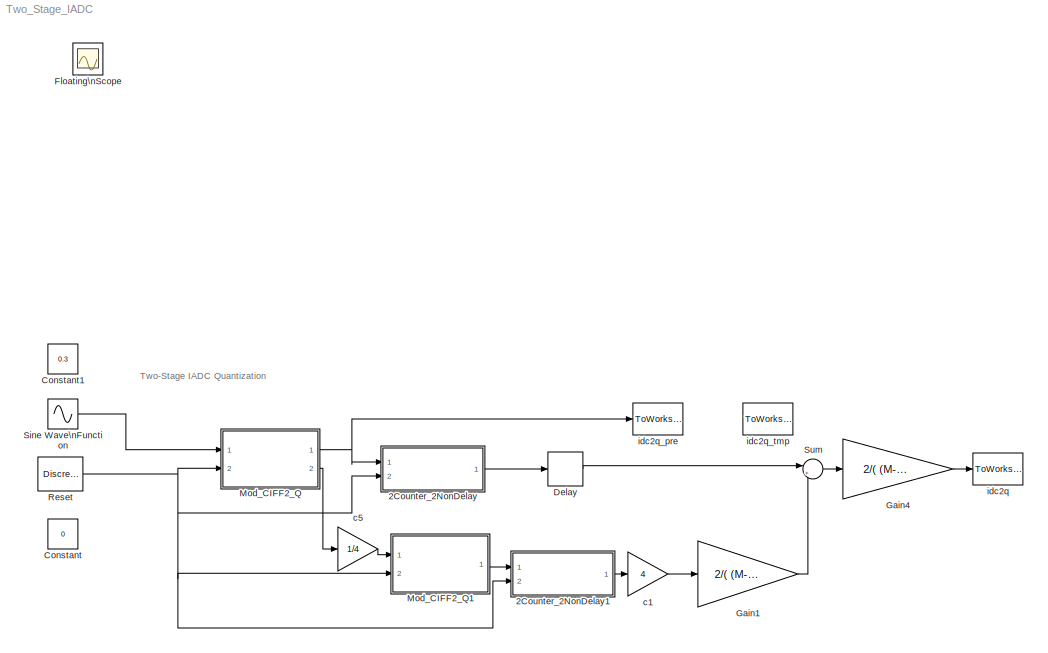
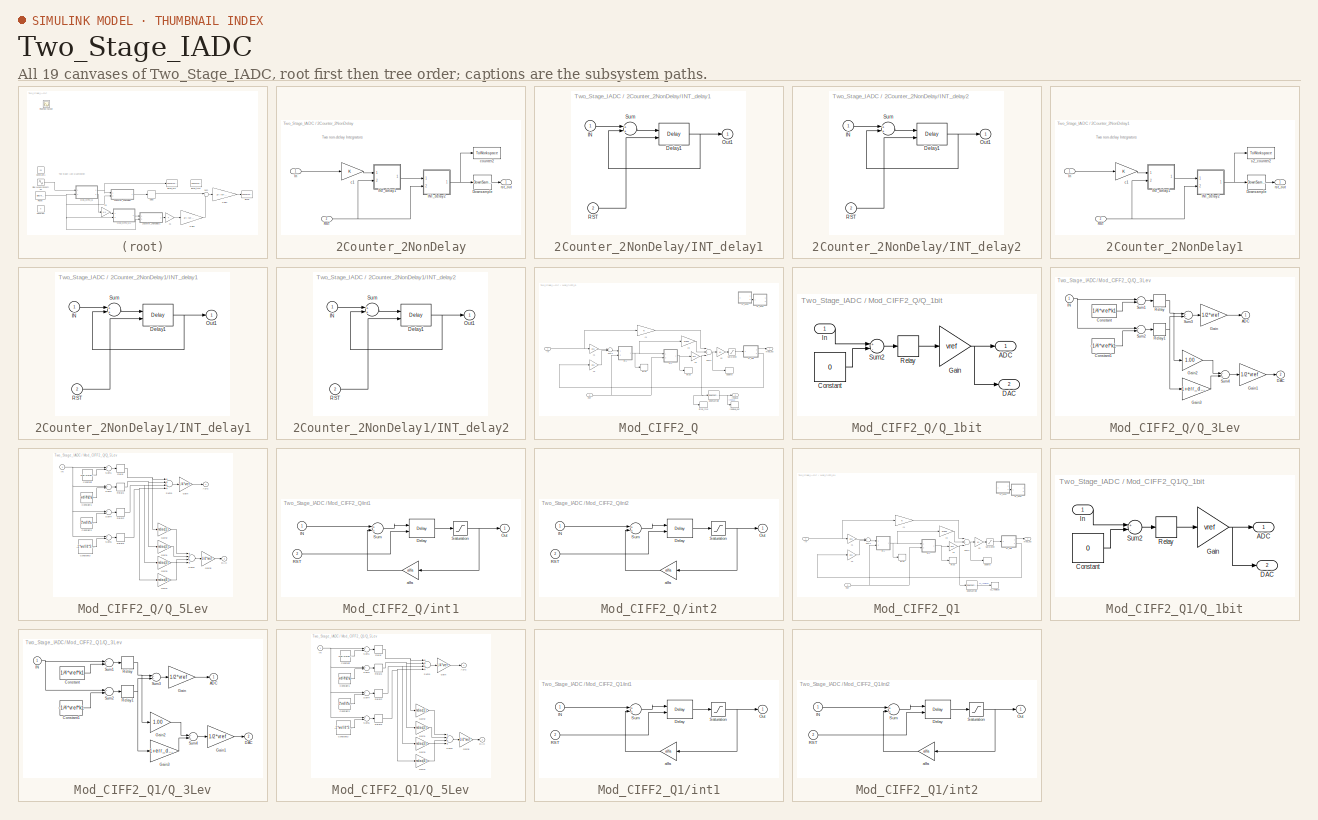
[diagram: thumbnail index - all 19 canvases of the model, root first then tree order]
MODEL Two_Stage_IADC
KIND model
BLOCK [SubSystem] 2Counter_2NonDelay
  Ports = [2, 1]
  RequestExecContextInheritance = off
  SID = 12296
BLOCK [DownSample] 2Counter_2NonDelay/Downsample
  InputProcessing = Elements as channels (sample based)
  N = OSR
  RateOptions = Allow multirate processing
  SID = 12299
  phase = OSR-1
BLOCK [SubSystem] 2Counter_2NonDelay/INT_delay1
  Ports = [2, 1]
  RequestExecContextInheritance = off
  SID = 12872
BLOCK [Delay] 2Counter_2NonDelay/INT_delay1/Delay1
  DelayLength = 1
  ExternalReset = Rising
  InitialCondition = 0
  InputPortMap = u0,r5
  Ports = [2, 1]
  SID = 12875
  UserData = DataTag0
  UserDataPersistent = on
BLOCK [Inport] 2Counter_2NonDelay/INT_delay1/IN
  IconDisplay = Port number
  SID = 12873
BLOCK [Outport] 2Counter_2NonDelay/INT_delay1/Out1
  IconDisplay = Port number
  SID = 12877
  VectorParamsAs1DForOutWhenUnconnected = off
BLOCK [Inport] 2Counter_2NonDelay/INT_delay1/RST
  IconDisplay = Port number
  Port = 2
  SID = 12874
BLOCK [Sum] 2Counter_2NonDelay/INT_delay1/Sum
  Ports = [2, 1]
  SID = 12876
BLOCK [SubSystem] 2Counter_2NonDelay/INT_delay2
  Ports = [2, 1]
  RequestExecContextInheritance = off
  SID = 12306
BLOCK [Delay] 2Counter_2NonDelay/INT_delay2/Delay1
  DelayLength = 1
  ExternalReset = Rising
  InitialCondition = 0
  InputPortMap = u0,r5
  Ports = [2, 1]
  SID = 12712
  UserData = DataTag1
  UserDataPersistent = on
BLOCK [Inport] 2Counter_2NonDelay/INT_delay2/IN
  IconDisplay = Port number
  SID = 12307
BLOCK [Outport] 2Counter_2NonDelay/INT_delay2/Out1
  IconDisplay = Port number
  SID = 12311
  VectorParamsAs1DForOutWhenUnconnected = off
BLOCK [Inport] 2Counter_2NonDelay/INT_delay2/RST
  IconDisplay = Port number
  Port = 2
  SID = 12308
BLOCK [Sum] 2Counter_2NonDelay/INT_delay2/Sum
  Ports = [2, 1]
  SID = 12310
BLOCK [Inport] 2Counter_2NonDelay/In
  IconDisplay = Port number
  SID = 12297
BLOCK [Inport] 2Counter_2NonDelay/RST
  IconDisplay = Port number
  Port = 2
  SID = 12298
BLOCK [Gain] 2Counter_2NonDelay/c1
  SID = 12312
BLOCK [ToWorkspace] 2Counter_2NonDelay/counter2
  MaxDataPoints = inf
  Ports = [1]
  SID = 12616
  SampleTime = -1
  VariableName = counter2
BLOCK [Outport] 2Counter_2NonDelay/rst_out
  IconDisplay = Port number
  SID = 12313
  VectorParamsAs1DForOutWhenUnconnected = off
BLOCK [SubSystem] 2Counter_2NonDelay1
  Ports = [2, 1]
  RequestExecContextInheritance = off
  SID = 12878
BLOCK [DownSample] 2Counter_2NonDelay1/Downsample
  InputProcessing = Elements as channels (sample based)
  N = OSR
  RateOptions = Allow multirate processing
  SID = 12881
  phase = OSR-1
BLOCK [SubSystem] 2Counter_2NonDelay1/INT_delay1
  Ports = [2, 1]
  RequestExecContextInheritance = off
  SID = 12882
BLOCK [Delay] 2Counter_2NonDelay1/INT_delay1/Delay1
  DelayLength = 1
  ExternalReset = Rising
  InitialCondition = 0
  InputPortMap = u0,r5
  Ports = [2, 1]
  SID = 12885
  UserData = DataTag2
  UserDataPersistent = on
BLOCK [Inport] 2Counter_2NonDelay1/INT_delay1/IN
  IconDisplay = Port number
  SID = 12883
BLOCK [Outport] 2Counter_2NonDelay1/INT_delay1/Out1
  IconDisplay = Port number
  SID = 12887
  VectorParamsAs1DForOutWhenUnconnected = off
BLOCK [Inport] 2Counter_2NonDelay1/INT_delay1/RST
  IconDisplay = Port number
  Port = 2
  SID = 12884
BLOCK [Sum] 2Counter_2NonDelay1/INT_delay1/Sum
  Ports = [2, 1]
  SID = 12886
BLOCK [SubSystem] 2Counter_2NonDelay1/INT_delay2
  Ports = [2, 1]
  RequestExecContextInheritance = off
  SID = 12888
BLOCK [Delay] 2Counter_2NonDelay1/INT_delay2/Delay1
  DelayLength = 1
  ExternalReset = Rising
  InitialCondition = 0
  InputPortMap = u0,r5
  Ports = [2, 1]
  SID = 12891
  UserData = DataTag3
  UserDataPersistent = on
BLOCK [Inport] 2Counter_2NonDelay1/INT_delay2/IN
  IconDisplay = Port number
  SID = 12889
BLOCK [Outport] 2Counter_2NonDelay1/INT_delay2/Out1
  IconDisplay = Port number
  SID = 12893
  VectorParamsAs1DForOutWhenUnconnected = off
BLOCK [Inport] 2Counter_2NonDelay1/INT_delay2/RST
  IconDisplay = Port number
  Port = 2
  SID = 12890
BLOCK [Sum] 2Counter_2NonDelay1/INT_delay2/Sum
  Ports = [2, 1]
  SID = 12892
BLOCK [Inport] 2Counter_2NonDelay1/In
  IconDisplay = Port number
  SID = 12879
BLOCK [Inport] 2Counter_2NonDelay1/RST
  IconDisplay = Port number
  Port = 2
  SID = 12880
BLOCK [Gain] 2Counter_2NonDelay1/c1
  SID = 12894
BLOCK [Outport] 2Counter_2NonDelay1/rst_out
  IconDisplay = Port number
  SID = 12896
  VectorParamsAs1DForOutWhenUnconnected = off
BLOCK [ToWorkspace] 2Counter_2NonDelay1/s2_counter2
  MaxDataPoints = inf
  Ports = [1]
  SID = 12895
  SampleTime = -1
  VariableName = s2_counter2
BLOCK [Constant] Constant
  Commented = on
  SID = 12759
  Value = 0
BLOCK [Constant] Constant1
  Commented = on
  SID = 12900
  Value = 0.3
BLOCK [Delay] Delay
  DelayLength = 1
  InitialCondition = 0
  InputPortMap = u0
  Ports = [1, 1]
  SID = 12868
BLOCK [Scope] Floating\nScope
  Floating = off
  IOType = viewer
  NumInputPorts = 1
  Ports = []
  SID = 82
  ScopeSpecificationString = C++SS(StrPVP('Location','[376, 294, 963, 755]'),StrPVP('Open','off'),MxPVP('AxesTitles',54,'struct(''axes1'',''%<SignalLabel>'')'),StrPVP('DataFormat','StructureWithTime'),StrPVP('BlockParamSampleTime','0'),StrPVP('LimitDataPoints','on'),StrPVP('Decimation','1'),StrPVP('BlockParamSampleInput','off'))
BLOCK [Gain] Gain1
  Gain = 2/( (M-1)*(M) )
  OutDataTypeStr = Inherit: Inherit via internal rule
  ParamDataTypeStr = Inherit: Inherit via internal rule
  SID = 12899
  SaturateOnIntegerOverflow = off
BLOCK [Gain] Gain4
  Gain = 2/( (M-1)*(M) )
  OutDataTypeStr = Inherit: Inherit via internal rule
  ParamDataTypeStr = Inherit: Inherit via internal rule
  SID = 11902
  SaturateOnIntegerOverflow = off
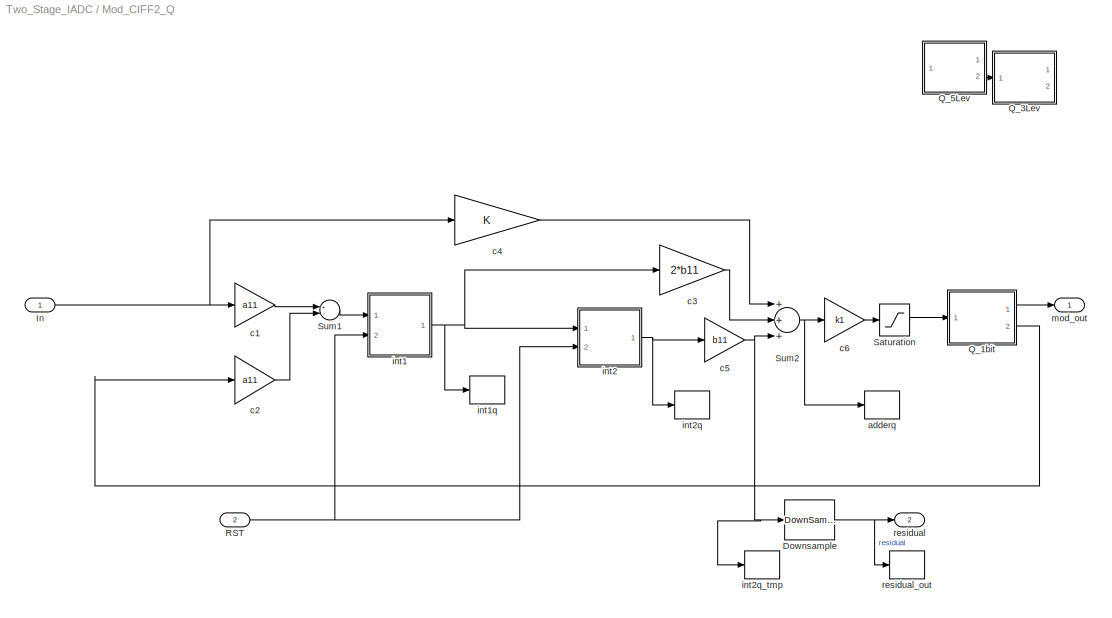
BLOCK [SubSystem] Mod_CIFF2_Q
  Ports = [2, 2]
  RequestExecContextInheritance = off
  SID = 11903
BLOCK [DownSample] Mod_CIFF2_Q/Downsample
  InputProcessing = Elements as channels (sample based)
  N = OSR
  RateOptions = Allow multirate processing
  SID = 12760
  phase = OSR-1
BLOCK [Inport] Mod_CIFF2_Q/In
  IconDisplay = Port number
  SID = 11904
BLOCK [SubSystem] Mod_CIFF2_Q/Q_1bit
  Ports = [1, 2]
  RequestExecContextInheritance = off
  SID = 11919
BLOCK [Outport] Mod_CIFF2_Q/Q_1bit/ADC
  IconDisplay = Port number
  SID = 11925
  VectorParamsAs1DForOutWhenUnconnected = off
BLOCK [Constant] Mod_CIFF2_Q/Q_1bit/Constant
  SID = 11921
  Value = 0
BLOCK [Outport] Mod_CIFF2_Q/Q_1bit/DAC
  IconDisplay = Port number
  Port = 2
  SID = 11926
  VectorParamsAs1DForOutWhenUnconnected = off
BLOCK [Gain] Mod_CIFF2_Q/Q_1bit/Gain
  Gain = vref
  OutDataTypeStr = Inherit: Inherit via internal rule
  ParamDataTypeStr = Inherit: Inherit via internal rule
  SID = 11922
  SaturateOnIntegerOverflow = off
BLOCK [Inport] Mod_CIFF2_Q/Q_1bit/In
  IconDisplay = Port number
  SID = 11920
BLOCK [Relay] Mod_CIFF2_Q/Q_1bit/Relay
  OffOutputValue = -1
  SID = 11923
  SampleTime = tclk
BLOCK [Sum] Mod_CIFF2_Q/Q_1bit/Sum2
  Inputs = +-
  Ports = [2, 1]
  SID = 11924
BLOCK [SubSystem] Mod_CIFF2_Q/Q_3Lev
  Ports = [1, 2]
  RequestExecContextInheritance = off
  SID = 12583
BLOCK [Outport] Mod_CIFF2_Q/Q_3Lev/ADC
  IconDisplay = Port number
  SID = 12597
  VectorParamsAs1DForOutWhenUnconnected = off
BLOCK [Constant] Mod_CIFF2_Q/Q_3Lev/Constant
  SID = 12585
  Value = 1/4*vref*k1
BLOCK [Constant] Mod_CIFF2_Q/Q_3Lev/Constant1
  SID = 12586
  Value = -1/4*vref*k1
BLOCK [Outport] Mod_CIFF2_Q/Q_3Lev/DAC
  IconDisplay = Port number
  Port = 2
  SID = 12598
  VectorParamsAs1DForOutWhenUnconnected = off
BLOCK [Gain] Mod_CIFF2_Q/Q_3Lev/Gain
  Gain = 1/2*vref
  OutDataTypeStr = Inherit: Inherit via internal rule
  ParamDataTypeStr = Inherit: Inherit via internal rule
  SID = 12587
  SaturateOnIntegerOverflow = off
BLOCK [Gain] Mod_CIFF2_Q/Q_3Lev/Gain1
  Gain = 1/2*vref
  OutDataTypeStr = Inherit: Inherit via internal rule
  ParamDataTypeStr = Inherit: Inherit via internal rule
  SID = 12588
  SaturateOnIntegerOverflow = off
BLOCK [Gain] Mod_CIFF2_Q/Q_3Lev/Gain2
  Gain = 1.00
  OutDataTypeStr = Inherit: Inherit via internal rule
  ParamDataTypeStr = Inherit: Inherit via internal rule
  SID = 12589
  SaturateOnIntegerOverflow = off
BLOCK [Gain] Mod_CIFF2_Q/Q_3Lev/Gain3
  Gain = 1+err_dac
  OutDataTypeStr = Inherit: Inherit via internal rule
  ParamDataTypeStr = Inherit: Inherit via internal rule
  SID = 12590
  SaturateOnIntegerOverflow = off
BLOCK [Inport] Mod_CIFF2_Q/Q_3Lev/IN
  IconDisplay = Port number
  SID = 12584
BLOCK [Relay] Mod_CIFF2_Q/Q_3Lev/Relay
  OffOutputValue = -1
  SID = 12591
  SampleTime = tclk
BLOCK [Relay] Mod_CIFF2_Q/Q_3Lev/Relay1
  OffOutputValue = -1
  SID = 12592
  SampleTime = tclk
BLOCK [Sum] Mod_CIFF2_Q/Q_3Lev/Sum1
  Inputs = +-
  Ports = [2, 1]
  SID = 12593
BLOCK [Sum] Mod_CIFF2_Q/Q_3Lev/Sum2
  Inputs = +-
  Ports = [2, 1]
  SID = 12594
BLOCK [Sum] Mod_CIFF2_Q/Q_3Lev/Sum3
  Ports = [2, 1]
  SID = 12595
BLOCK [Sum] Mod_CIFF2_Q/Q_3Lev/Sum4
  Ports = [2, 1]
  SID = 12596
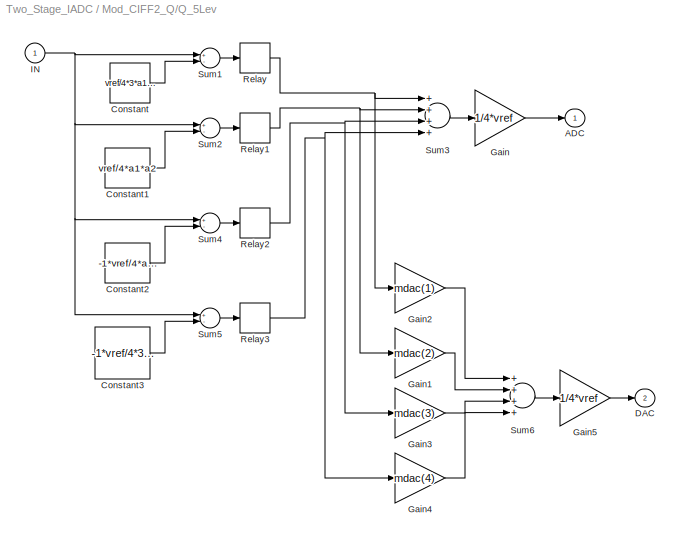
BLOCK [SubSystem] Mod_CIFF2_Q/Q_5Lev
  Ports = [1, 2]
  RequestExecContextInheritance = off
  SID = 12559
BLOCK [Outport] Mod_CIFF2_Q/Q_5Lev/ADC
  IconDisplay = Port number
  SID = 12581
  VectorParamsAs1DForOutWhenUnconnected = off
BLOCK [Constant] Mod_CIFF2_Q/Q_5Lev/Constant
  SID = 12561
  Value = vref/4*3*a1*a2
BLOCK [Constant] Mod_CIFF2_Q/Q_5Lev/Constant1
  SID = 12562
  Value = vref/4*a1*a2
BLOCK [Constant] Mod_CIFF2_Q/Q_5Lev/Constant2
  SID = 12563
  Value = -1*vref/4*a1*a2
BLOCK [Constant] Mod_CIFF2_Q/Q_5Lev/Constant3
  SID = 12564
  Value = -1*vref/4*3*a1*a2
BLOCK [Outport] Mod_CIFF2_Q/Q_5Lev/DAC
  IconDisplay = Port number
  Port = 2
  SID = 12582
  VectorParamsAs1DForOutWhenUnconnected = off
BLOCK [Gain] Mod_CIFF2_Q/Q_5Lev/Gain
  Gain = 1/4*vref
  OutDataTypeStr = Inherit: Inherit via internal rule
  ParamDataTypeStr = Inherit: Inherit via internal rule
  SID = 12565
  SaturateOnIntegerOverflow = off
BLOCK [Gain] Mod_CIFF2_Q/Q_5Lev/Gain1
  Gain = mdac(2)
  OutDataTypeStr = Inherit: Inherit via internal rule
  ParamDataTypeStr = Inherit: Inherit via internal rule
  SID = 12566
  SaturateOnIntegerOverflow = off
BLOCK [Gain] Mod_CIFF2_Q/Q_5Lev/Gain2
  Gain = mdac(1)
  OutDataTypeStr = Inherit: Inherit via internal rule
  ParamDataTypeStr = Inherit: Inherit via internal rule
  SID = 12567
  SaturateOnIntegerOverflow = off
BLOCK [Gain] Mod_CIFF2_Q/Q_5Lev/Gain3
  Gain = mdac(3)
  OutDataTypeStr = Inherit: Inherit via internal rule
  ParamDataTypeStr = Inherit: Inherit via internal rule
  SID = 12568
  SaturateOnIntegerOverflow = off
BLOCK [Gain] Mod_CIFF2_Q/Q_5Lev/Gain4
  Gain = mdac(4)
  OutDataTypeStr = Inherit: Inherit via internal rule
  ParamDataTypeStr = Inherit: Inherit via internal rule
  SID = 12569
  SaturateOnIntegerOverflow = off
BLOCK [Gain] Mod_CIFF2_Q/Q_5Lev/Gain5
  Gain = 1/4*vref
  OutDataTypeStr = Inherit: Inherit via internal rule
  ParamDataTypeStr = Inherit: Inherit via internal rule
  SID = 12570
  SaturateOnIntegerOverflow = off
BLOCK [Inport] Mod_CIFF2_Q/Q_5Lev/IN
  IconDisplay = Port number
  SID = 12560
BLOCK [Relay] Mod_CIFF2_Q/Q_5Lev/Relay
  OffOutputValue = -1
  SID = 12571
  SampleTime = tclk
BLOCK [Relay] Mod_CIFF2_Q/Q_5Lev/Relay1
  OffOutputValue = -1
  SID = 12572
  SampleTime = tclk
BLOCK [Relay] Mod_CIFF2_Q/Q_5Lev/Relay2
  OffOutputValue = -1
  SID = 12573
  SampleTime = tclk
BLOCK [Relay] Mod_CIFF2_Q/Q_5Lev/Relay3
  OffOutputValue = -1
  SID = 12574
  SampleTime = tclk
BLOCK [Sum] Mod_CIFF2_Q/Q_5Lev/Sum1
  Inputs = +-
  Ports = [2, 1]
  SID = 12575
BLOCK [Sum] Mod_CIFF2_Q/Q_5Lev/Sum2
  Inputs = +-
  Ports = [2, 1]
  SID = 12576
BLOCK [Sum] Mod_CIFF2_Q/Q_5Lev/Sum3
  Inputs = ++++
  Ports = [4, 1]
  SID = 12577
BLOCK [Sum] Mod_CIFF2_Q/Q_5Lev/Sum4
  Inputs = +-
  Ports = [2, 1]
  SID = 12578
BLOCK [Sum] Mod_CIFF2_Q/Q_5Lev/Sum5
  Inputs = +-
  Ports = [2, 1]
  SID = 12579
BLOCK [Sum] Mod_CIFF2_Q/Q_5Lev/Sum6
  Inputs = ++++
  Ports = [4, 1]
  SID = 12580
BLOCK [Inport] Mod_CIFF2_Q/RST
  IconDisplay = Port number
  Port = 2
  SID = 11905
BLOCK [Saturate] Mod_CIFF2_Q/Saturation
  InputPortMap = u0
  LowerLimit = -1*adder_max
  Ports = [1, 1]
  SID = 11967
  UpperLimit = adder_max*1
BLOCK [Sum] Mod_CIFF2_Q/Sum1
  Inputs = +-
  Ports = [2, 1]
  SID = 11968
BLOCK [Sum] Mod_CIFF2_Q/Sum2
  Inputs = +++
  Ports = [3, 1]
  SID = 11969
BLOCK [ToWorkspace] Mod_CIFF2_Q/adderq
  MaxDataPoints = inf
  Ports = [1]
  SID = 12749
  SampleTime = -1
  VariableName = adderq
BLOCK [Gain] Mod_CIFF2_Q/c1
  Gain = a11
  SID = 11970
BLOCK [Gain] Mod_CIFF2_Q/c2
  Gain = a11
  SID = 11971
BLOCK [Gain] Mod_CIFF2_Q/c3
  Gain = 2*b11
  SID = 11972
BLOCK [Gain] Mod_CIFF2_Q/c4
  SID = 11973
BLOCK [Gain] Mod_CIFF2_Q/c5
  Gain = b11
  SID = 11974
BLOCK [Gain] Mod_CIFF2_Q/c6
  Gain = k1
  SID = 11975
BLOCK [SubSystem] Mod_CIFF2_Q/int1
  Ports = [2, 1]
  RequestExecContextInheritance = off
  SID = 12646
BLOCK [Delay] Mod_CIFF2_Q/int1/Delay
  DelayLength = 1
  ExternalReset = Rising
  InitialCondition = 0
  InputPortMap = u0,r5
  Ports = [2, 1]
  SID = 12649
  UserData = DataTag4
  UserDataPersistent = on
BLOCK [Inport] Mod_CIFF2_Q/int1/IN
  IconDisplay = Port number
  SID = 12647
BLOCK [Outport] Mod_CIFF2_Q/int1/Out
  IconDisplay = Port number
  SID = 12653
  VectorParamsAs1DForOutWhenUnconnected = off
BLOCK [Inport] Mod_CIFF2_Q/int1/RST
  IconDisplay = Port number
  Port = 2
  SID = 12648
BLOCK [Saturate] Mod_CIFF2_Q/int1/Saturation
  InputPortMap = u0
  LowerLimit = -1*Amax
  Ports = [1, 1]
  SID = 12650
  UpperLimit = Amax
BLOCK [Sum] Mod_CIFF2_Q/int1/Sum
  Ports = [2, 1]
  SID = 12651
BLOCK [Gain] Mod_CIFF2_Q/int1/alfa
  Gain = alfa
  SID = 12652
BLOCK [ToWorkspace] Mod_CIFF2_Q/int1q
  MaxDataPoints = inf
  Ports = [1]
  SID = 11976
  SampleTime = -1
  VariableName = int1q
BLOCK [SubSystem] Mod_CIFF2_Q/int2
  Ports = [2, 1]
  RequestExecContextInheritance = off
  SID = 12654
BLOCK [Delay] Mod_CIFF2_Q/int2/Delay
  DelayLength = 1
  ExternalReset = Rising
  InitialCondition = 0
  InputPortMap = u0,r5
  Ports = [2, 1]
  SID = 12657
  UserData = DataTag5
  UserDataPersistent = on
BLOCK [Inport] Mod_CIFF2_Q/int2/IN
  IconDisplay = Port number
  SID = 12655
BLOCK [Outport] Mod_CIFF2_Q/int2/Out
  IconDisplay = Port number
  SID = 12661
  VectorParamsAs1DForOutWhenUnconnected = off
BLOCK [Inport] Mod_CIFF2_Q/int2/RST
  IconDisplay = Port number
  Port = 2
  SID = 12656
BLOCK [Saturate] Mod_CIFF2_Q/int2/Saturation
  InputPortMap = u0
  LowerLimit = -1*Amax
  Ports = [1, 1]
  SID = 12658
  UpperLimit = Amax
BLOCK [Sum] Mod_CIFF2_Q/int2/Sum
  Ports = [2, 1]
  SID = 12659
BLOCK [Gain] Mod_CIFF2_Q/int2/alfa
  Gain = alfa
  SID = 12660
BLOCK [ToWorkspace] Mod_CIFF2_Q/int2q
  MaxDataPoints = inf
  Ports = [1]
  SID = 11977
  SampleTime = -1
  VariableName = int2q
BLOCK [ToWorkspace] Mod_CIFF2_Q/int2q_tmp
  MaxDataPoints = inf
  Ports = [1]
  SID = 12871
  SampleTime = -1
  VariableName = int2q_tmp
BLOCK [Outport] Mod_CIFF2_Q/mod_out
  IconDisplay = Port number
  SID = 11988
  VectorParamsAs1DForOutWhenUnconnected = off
BLOCK [Outport] Mod_CIFF2_Q/residual
  IconDisplay = Port number
  Port = 2
  SID = 12761
  VectorParamsAs1DForOutWhenUnconnected = off
BLOCK [ToWorkspace] Mod_CIFF2_Q/residual_out
  MaxDataPoints = inf
  Ports = [1]
  SID = 12846
  SampleTime = -1
  VariableName = residual
BLOCK [SubSystem] Mod_CIFF2_Q1
  Ports = [2, 1]
  RequestExecContextInheritance = off
  SID = 12762
BLOCK [DownSample] Mod_CIFF2_Q1/Downsample
  InputProcessing = Elements as channels (sample based)
  N = OSR
  RateOptions = Allow multirate processing
  SID = 12765
  phase = OSR-1
BLOCK [Inport] Mod_CIFF2_Q1/In
  IconDisplay = Port number
  SID = 12763
BLOCK [SubSystem] Mod_CIFF2_Q1/Q_1bit
  Ports = [1, 2]
  RequestExecContextInheritance = off
  SID = 12766
BLOCK [Outport] Mod_CIFF2_Q1/Q_1bit/ADC
  IconDisplay = Port number
  SID = 12772
  VectorParamsAs1DForOutWhenUnconnected = off
BLOCK [Constant] Mod_CIFF2_Q1/Q_1bit/Constant
  SID = 12768
  Value = 0
BLOCK [Outport] Mod_CIFF2_Q1/Q_1bit/DAC
  IconDisplay = Port number
  Port = 2
  SID = 12773
  VectorParamsAs1DForOutWhenUnconnected = off
BLOCK [Gain] Mod_CIFF2_Q1/Q_1bit/Gain
  Gain = vref
  OutDataTypeStr = Inherit: Inherit via internal rule
  ParamDataTypeStr = Inherit: Inherit via internal rule
  SID = 12769
  SaturateOnIntegerOverflow = off
BLOCK [Inport] Mod_CIFF2_Q1/Q_1bit/In
  IconDisplay = Port number
  SID = 12767
BLOCK [Relay] Mod_CIFF2_Q1/Q_1bit/Relay
  OffOutputValue = -1
  SID = 12770
  SampleTime = tclk
BLOCK [Sum] Mod_CIFF2_Q1/Q_1bit/Sum2
  Inputs = +-
  Ports = [2, 1]
  SID = 12771
BLOCK [SubSystem] Mod_CIFF2_Q1/Q_3Lev
  Ports = [1, 2]
  RequestExecContextInheritance = off
  SID = 12774
BLOCK [Outport] Mod_CIFF2_Q1/Q_3Lev/ADC
  IconDisplay = Port number
  SID = 12788
  VectorParamsAs1DForOutWhenUnconnected = off
BLOCK [Constant] Mod_CIFF2_Q1/Q_3Lev/Constant
  SID = 12776
  Value = 1/4*vref*k1
BLOCK [Constant] Mod_CIFF2_Q1/Q_3Lev/Constant1
  SID = 12777
  Value = -1/4*vref*k1
BLOCK [Outport] Mod_CIFF2_Q1/Q_3Lev/DAC
  IconDisplay = Port number
  Port = 2
  SID = 12789
  VectorParamsAs1DForOutWhenUnconnected = off
BLOCK [Gain] Mod_CIFF2_Q1/Q_3Lev/Gain
  Gain = 1/2*vref
  OutDataTypeStr = Inherit: Inherit via internal rule
  ParamDataTypeStr = Inherit: Inherit via internal rule
  SID = 12778
  SaturateOnIntegerOverflow = off
BLOCK [Gain] Mod_CIFF2_Q1/Q_3Lev/Gain1
  Gain = 1/2*vref
  OutDataTypeStr = Inherit: Inherit via internal rule
  ParamDataTypeStr = Inherit: Inherit via internal rule
  SID = 12779
  SaturateOnIntegerOverflow = off
BLOCK [Gain] Mod_CIFF2_Q1/Q_3Lev/Gain2
  Gain = 1.00
  OutDataTypeStr = Inherit: Inherit via internal rule
  ParamDataTypeStr = Inherit: Inherit via internal rule
  SID = 12780
  SaturateOnIntegerOverflow = off
BLOCK [Gain] Mod_CIFF2_Q1/Q_3Lev/Gain3
  Gain = 1+err_dac
  OutDataTypeStr = Inherit: Inherit via internal rule
  ParamDataTypeStr = Inherit: Inherit via internal rule
  SID = 12781
  SaturateOnIntegerOverflow = off
BLOCK [Inport] Mod_CIFF2_Q1/Q_3Lev/IN
  IconDisplay = Port number
  SID = 12775
BLOCK [Relay] Mod_CIFF2_Q1/Q_3Lev/Relay
  OffOutputValue = -1
  SID = 12782
  SampleTime = tclk
BLOCK [Relay] Mod_CIFF2_Q1/Q_3Lev/Relay1
  OffOutputValue = -1
  SID = 12783
  SampleTime = tclk
BLOCK [Sum] Mod_CIFF2_Q1/Q_3Lev/Sum1
  Inputs = +-
  Ports = [2, 1]
  SID = 12784
BLOCK [Sum] Mod_CIFF2_Q1/Q_3Lev/Sum2
  Inputs = +-
  Ports = [2, 1]
  SID = 12785
BLOCK [Sum] Mod_CIFF2_Q1/Q_3Lev/Sum3
  Ports = [2, 1]
  SID = 12786
BLOCK [Sum] Mod_CIFF2_Q1/Q_3Lev/Sum4
  Ports = [2, 1]
  SID = 12787
BLOCK [SubSystem] Mod_CIFF2_Q1/Q_5Lev
  Ports = [1, 2]
  RequestExecContextInheritance = off
  SID = 12791
BLOCK [Outport] Mod_CIFF2_Q1/Q_5Lev/ADC
  IconDisplay = Port number
  SID = 12813
  VectorParamsAs1DForOutWhenUnconnected = off
BLOCK [Constant] Mod_CIFF2_Q1/Q_5Lev/Constant
  SID = 12793
  Value = vref/4*3*a1*a2
BLOCK [Constant] Mod_CIFF2_Q1/Q_5Lev/Constant1
  SID = 12794
  Value = vref/4*a1*a2
BLOCK [Constant] Mod_CIFF2_Q1/Q_5Lev/Constant2
  SID = 12795
  Value = -1*vref/4*a1*a2
BLOCK [Constant] Mod_CIFF2_Q1/Q_5Lev/Constant3
  SID = 12796
  Value = -1*vref/4*3*a1*a2
BLOCK [Outport] Mod_CIFF2_Q1/Q_5Lev/DAC
  IconDisplay = Port number
  Port = 2
  SID = 12814
  VectorParamsAs1DForOutWhenUnconnected = off
BLOCK [Gain] Mod_CIFF2_Q1/Q_5Lev/Gain
  Gain = 1/4*vref
  OutDataTypeStr = Inherit: Inherit via internal rule
  ParamDataTypeStr = Inherit: Inherit via internal rule
  SID = 12797
  SaturateOnIntegerOverflow = off
BLOCK [Gain] Mod_CIFF2_Q1/Q_5Lev/Gain1
  Gain = mdac(2)
  OutDataTypeStr = Inherit: Inherit via internal rule
  ParamDataTypeStr = Inherit: Inherit via internal rule
  SID = 12798
  SaturateOnIntegerOverflow = off
BLOCK [Gain] Mod_CIFF2_Q1/Q_5Lev/Gain2
  Gain = mdac(1)
  OutDataTypeStr = Inherit: Inherit via internal rule
  ParamDataTypeStr = Inherit: Inherit via internal rule
  SID = 12799
  SaturateOnIntegerOverflow = off
BLOCK [Gain] Mod_CIFF2_Q1/Q_5Lev/Gain3
  Gain = mdac(3)
  OutDataTypeStr = Inherit: Inherit via internal rule
  ParamDataTypeStr = Inherit: Inherit via internal rule
  SID = 12800
  SaturateOnIntegerOverflow = off
BLOCK [Gain] Mod_CIFF2_Q1/Q_5Lev/Gain4
  Gain = mdac(4)
  OutDataTypeStr = Inherit: Inherit via internal rule
  ParamDataTypeStr = Inherit: Inherit via internal rule
  SID = 12801
  SaturateOnIntegerOverflow = off
BLOCK [Gain] Mod_CIFF2_Q1/Q_5Lev/Gain5
  Gain = 1/4*vref
  OutDataTypeStr = Inherit: Inherit via internal rule
  ParamDataTypeStr = Inherit: Inherit via internal rule
  SID = 12802
  SaturateOnIntegerOverflow = off
BLOCK [Inport] Mod_CIFF2_Q1/Q_5Lev/IN
  IconDisplay = Port number
  SID = 12792
BLOCK [Relay] Mod_CIFF2_Q1/Q_5Lev/Relay
  OffOutputValue = -1
  SID = 12803
  SampleTime = tclk
BLOCK [Relay] Mod_CIFF2_Q1/Q_5Lev/Relay1
  OffOutputValue = -1
  SID = 12804
  SampleTime = tclk
BLOCK [Relay] Mod_CIFF2_Q1/Q_5Lev/Relay2
  OffOutputValue = -1
  SID = 12805
  SampleTime = tclk
BLOCK [Relay] Mod_CIFF2_Q1/Q_5Lev/Relay3
  OffOutputValue = -1
  SID = 12806
  SampleTime = tclk
BLOCK [Sum] Mod_CIFF2_Q1/Q_5Lev/Sum1
  Inputs = +-
  Ports = [2, 1]
  SID = 12807
BLOCK [Sum] Mod_CIFF2_Q1/Q_5Lev/Sum2
  Inputs = +-
  Ports = [2, 1]
  SID = 12808
BLOCK [Sum] Mod_CIFF2_Q1/Q_5Lev/Sum3
  Inputs = ++++
  Ports = [4, 1]
  SID = 12809
BLOCK [Sum] Mod_CIFF2_Q1/Q_5Lev/Sum4
  Inputs = +-
  Ports = [2, 1]
  SID = 12810
BLOCK [Sum] Mod_CIFF2_Q1/Q_5Lev/Sum5
  Inputs = +-
  Ports = [2, 1]
  SID = 12811
BLOCK [Sum] Mod_CIFF2_Q1/Q_5Lev/Sum6
  Inputs = ++++
  Ports = [4, 1]
  SID = 12812
BLOCK [Inport] Mod_CIFF2_Q1/RST
  IconDisplay = Port number
  Port = 2
  SID = 12764
BLOCK [Saturate] Mod_CIFF2_Q1/Saturation
  InputPortMap = u0
  LowerLimit = -1*adder_max
  Ports = [1, 1]
  SID = 12815
  UpperLimit = adder_max*1
BLOCK [Sum] Mod_CIFF2_Q1/Sum1
  Inputs = +-
  Ports = [2, 1]
  SID = 12816
BLOCK [Sum] Mod_CIFF2_Q1/Sum2
  Inputs = +++
  Ports = [3, 1]
  SID = 12817
BLOCK [ToWorkspace] Mod_CIFF2_Q1/adderq
  MaxDataPoints = inf
  Ports = [1]
  SID = 12818
  SampleTime = -1
  VariableName = s2_adderq
BLOCK [Gain] Mod_CIFF2_Q1/c1
  Gain = a11
  SID = 12819
BLOCK [Gain] Mod_CIFF2_Q1/c2
  Gain = a11
  SID = 12820
BLOCK [Gain] Mod_CIFF2_Q1/c3
  Gain = 2*b11
  SID = 12821
BLOCK [Gain] Mod_CIFF2_Q1/c4
  SID = 12822
BLOCK [Gain] Mod_CIFF2_Q1/c5
  Gain = b11
  SID = 12823
BLOCK [Gain] Mod_CIFF2_Q1/c6
  Gain = k1
  SID = 12824
BLOCK [SubSystem] Mod_CIFF2_Q1/int1
  Ports = [2, 1]
  RequestExecContextInheritance = off
  SID = 12825
BLOCK [Delay] Mod_CIFF2_Q1/int1/Delay
  DelayLength = 1
  ExternalReset = Rising
  InitialCondition = 0
  InputPortMap = u0,r5
  Ports = [2, 1]
  SID = 12828
  UserData = DataTag6
  UserDataPersistent = on
BLOCK [Inport] Mod_CIFF2_Q1/int1/IN
  IconDisplay = Port number
  SID = 12826
BLOCK [Outport] Mod_CIFF2_Q1/int1/Out
  IconDisplay = Port number
  SID = 12832
  VectorParamsAs1DForOutWhenUnconnected = off
BLOCK [Inport] Mod_CIFF2_Q1/int1/RST
  IconDisplay = Port number
  Port = 2
  SID = 12827
BLOCK [Saturate] Mod_CIFF2_Q1/int1/Saturation
  InputPortMap = u0
  LowerLimit = -1*Amax
  Ports = [1, 1]
  SID = 12829
  UpperLimit = Amax
BLOCK [Sum] Mod_CIFF2_Q1/int1/Sum
  Ports = [2, 1]
  SID = 12830
BLOCK [Gain] Mod_CIFF2_Q1/int1/alfa
  Gain = alfa
  SID = 12831
BLOCK [ToWorkspace] Mod_CIFF2_Q1/int1q
  MaxDataPoints = inf
  Ports = [1]
  SID = 12833
  SampleTime = -1
  VariableName = s2_int1q
BLOCK [SubSystem] Mod_CIFF2_Q1/int2
  Ports = [2, 1]
  RequestExecContextInheritance = off
  SID = 12834
BLOCK [Delay] Mod_CIFF2_Q1/int2/Delay
  DelayLength = 1
  ExternalReset = Rising
  InitialCondition = 0
  InputPortMap = u0,r5
  Ports = [2, 1]
  SID = 12837
  UserData = DataTag7
  UserDataPersistent = on
BLOCK [Inport] Mod_CIFF2_Q1/int2/IN
  IconDisplay = Port number
  SID = 12835
BLOCK [Outport] Mod_CIFF2_Q1/int2/Out
  IconDisplay = Port number
  SID = 12841
  VectorParamsAs1DForOutWhenUnconnected = off
BLOCK [Inport] Mod_CIFF2_Q1/int2/RST
  IconDisplay = Port number
  Port = 2
  SID = 12836
BLOCK [Saturate] Mod_CIFF2_Q1/int2/Saturation
  InputPortMap = u0
  LowerLimit = -1*Amax
  Ports = [1, 1]
  SID = 12838
  UpperLimit = Amax
BLOCK [Sum] Mod_CIFF2_Q1/int2/Sum
  Ports = [2, 1]
  SID = 12839
BLOCK [Gain] Mod_CIFF2_Q1/int2/alfa
  Gain = alfa
  SID = 12840
BLOCK [ToWorkspace] Mod_CIFF2_Q1/int2q
  MaxDataPoints = inf
  Ports = [1]
  SID = 12842
  SampleTime = -1
  VariableName = s2_int2q
BLOCK [Outport] Mod_CIFF2_Q1/mod_out
  IconDisplay = Port number
  SID = 12843
  VectorParamsAs1DForOutWhenUnconnected = off
BLOCK [ToWorkspace] Mod_CIFF2_Q1/s2_redidual
  MaxDataPoints = inf
  Ports = [1]
  SID = 12845
  SampleTime = -1
  VariableName = s2_redidual
BLOCK [DiscretePulseGenerator] Reset
  Period = OSR
  Ports = [0, 1]
  SID = 3
  SampleTime = tclk
BLOCK [Sin] Sine Wave\nFunction
  Amplitude = vin_amp
  Frequency = fsig*2*pi
  Ports = [0, 1]
  SID = 12750
  SampleTime = tclk
BLOCK [Sum] Sum
  IconShape = round
  InputSameDT = off
  Inputs = |++
  OutDataTypeStr = Inherit: Inherit via internal rule
  Ports = [2, 1]
  SID = 12869
  SaturateOnIntegerOverflow = off
BLOCK [Gain] c1
  Gain = 4
  SID = 12903
BLOCK [Gain] c5
  Gain = 1/4
  SID = 12902
BLOCK [ToWorkspace] idc2q
  MaxDataPoints = inf
  Ports = [1]
  SID = 12033
  SampleTime = -1
  VariableName = idc2q
BLOCK [ToWorkspace] idc2q_pre
  MaxDataPoints = inf
  Ports = [1]
  SID = 12740
  SampleTime = -1
  VariableName = idc2q_pre
BLOCK [ToWorkspace] idc2q_tmp
  Commented = on
  MaxDataPoints = inf
  Ports = [1]
  SID = 12870
  SampleTime = -1
  VariableName = idc2q_tmp
ANNOTATION (root): Two-Stage IADC Quantization
ANNOTATION 2Counter_2NonDelay: Two non-delay Integrators
ANNOTATION 2Counter_2NonDelay1: Two non-delay Integrators
LINE 2Counter_2NonDelay/Downsample:1 -> 2Counter_2NonDelay/rst_out:1
NET 2Counter_2NonDelay/INT_delay1/Delay1:1 -> 2Counter_2NonDelay/INT_delay1/Out1:1, 2Counter_2NonDelay/INT_delay1/Sum:2
LINE 2Counter_2NonDelay/INT_delay1/IN:1 -> 2Counter_2NonDelay/INT_delay1/Sum:1
LINE 2Counter_2NonDelay/INT_delay1/RST:1 -> 2Counter_2NonDelay/INT_delay1/Delay1:2
LINE 2Counter_2NonDelay/INT_delay1/Sum:1 -> 2Counter_2NonDelay/INT_delay1/Delay1:1
LINE 2Counter_2NonDelay/INT_delay1:1 -> 2Counter_2NonDelay/INT_delay2:1
NET 2Counter_2NonDelay/INT_delay2/Delay1:1 -> 2Counter_2NonDelay/INT_delay2/Out1:1, 2Counter_2NonDelay/INT_delay2/Sum:2
LINE 2Counter_2NonDelay/INT_delay2/IN:1 -> 2Counter_2NonDelay/INT_delay2/Sum:1
LINE 2Counter_2NonDelay/INT_delay2/RST:1 -> 2Counter_2NonDelay/INT_delay2/Delay1:2
LINE 2Counter_2NonDelay/INT_delay2/Sum:1 -> 2Counter_2NonDelay/INT_delay2/Delay1:1
NET 2Counter_2NonDelay/INT_delay2:1 -> 2Counter_2NonDelay/Downsample:1, 2Counter_2NonDelay/counter2:1
LINE 2Counter_2NonDelay/In:1 -> 2Counter_2NonDelay/c1:1
NET 2Counter_2NonDelay/RST:1 -> 2Counter_2NonDelay/INT_delay1:2, 2Counter_2NonDelay/INT_delay2:2
LINE 2Counter_2NonDelay/c1:1 -> 2Counter_2NonDelay/INT_delay1:1
LINE 2Counter_2NonDelay1/Downsample:1 -> 2Counter_2NonDelay1/rst_out:1
NET 2Counter_2NonDelay1/INT_delay1/Delay1:1 -> 2Counter_2NonDelay1/INT_delay1/Out1:1, 2Counter_2NonDelay1/INT_delay1/Sum:2
LINE 2Counter_2NonDelay1/INT_delay1/IN:1 -> 2Counter_2NonDelay1/INT_delay1/Sum:1
LINE 2Counter_2NonDelay1/INT_delay1/RST:1 -> 2Counter_2NonDelay1/INT_delay1/Delay1:2
LINE 2Counter_2NonDelay1/INT_delay1/Sum:1 -> 2Counter_2NonDelay1/INT_delay1/Delay1:1
LINE 2Counter_2NonDelay1/INT_delay1:1 -> 2Counter_2NonDelay1/INT_delay2:1
NET 2Counter_2NonDelay1/INT_delay2/Delay1:1 -> 2Counter_2NonDelay1/INT_delay2/Out1:1, 2Counter_2NonDelay1/INT_delay2/Sum:2
LINE 2Counter_2NonDelay1/INT_delay2/IN:1 -> 2Counter_2NonDelay1/INT_delay2/Sum:1
LINE 2Counter_2NonDelay1/INT_delay2/RST:1 -> 2Counter_2NonDelay1/INT_delay2/Delay1:2
LINE 2Counter_2NonDelay1/INT_delay2/Sum:1 -> 2Counter_2NonDelay1/INT_delay2/Delay1:1
NET 2Counter_2NonDelay1/INT_delay2:1 -> 2Counter_2NonDelay1/Downsample:1, 2Counter_2NonDelay1/s2_counter2:1
LINE 2Counter_2NonDelay1/In:1 -> 2Counter_2NonDelay1/c1:1
NET 2Counter_2NonDelay1/RST:1 -> 2Counter_2NonDelay1/INT_delay1:2, 2Counter_2NonDelay1/INT_delay2:2
LINE 2Counter_2NonDelay1/c1:1 -> 2Counter_2NonDelay1/INT_delay1:1
LINE 2Counter_2NonDelay1:1 -> c1:1
LINE 2Counter_2NonDelay:1 -> Delay:1
LINE Delay:1 -> Sum:1
LINE Gain1:1 -> Sum:2
LINE Gain4:1 -> idc2q:1
NET Mod_CIFF2_Q/Downsample:1 -> Mod_CIFF2_Q/residual:1, Mod_CIFF2_Q/residual_out:1
NET Mod_CIFF2_Q/In:1 -> Mod_CIFF2_Q/c1:1, Mod_CIFF2_Q/c4:1
LINE Mod_CIFF2_Q/Q_1bit/Constant:1 -> Mod_CIFF2_Q/Q_1bit/Sum2:2
NET Mod_CIFF2_Q/Q_1bit/Gain:1 -> Mod_CIFF2_Q/Q_1bit/ADC:1, Mod_CIFF2_Q/Q_1bit/DAC:1
LINE Mod_CIFF2_Q/Q_1bit/In:1 -> Mod_CIFF2_Q/Q_1bit/Sum2:1
LINE Mod_CIFF2_Q/Q_1bit/Relay:1 -> Mod_CIFF2_Q/Q_1bit/Gain:1
LINE Mod_CIFF2_Q/Q_1bit/Sum2:1 -> Mod_CIFF2_Q/Q_1bit/Relay:1
LINE Mod_CIFF2_Q/Q_1bit:1 -> Mod_CIFF2_Q/mod_out:1
LINE Mod_CIFF2_Q/Q_1bit:2 -> Mod_CIFF2_Q/c2:1
LINE Mod_CIFF2_Q/Q_3Lev/Constant1:1 -> Mod_CIFF2_Q/Q_3Lev/Sum2:2
LINE Mod_CIFF2_Q/Q_3Lev/Constant:1 -> Mod_CIFF2_Q/Q_3Lev/Sum1:2
LINE Mod_CIFF2_Q/Q_3Lev/Gain1:1 -> Mod_CIFF2_Q/Q_3Lev/DAC:1
LINE Mod_CIFF2_Q/Q_3Lev/Gain2:1 -> Mod_CIFF2_Q/Q_3Lev/Sum4:1
LINE Mod_CIFF2_Q/Q_3Lev/Gain3:1 -> Mod_CIFF2_Q/Q_3Lev/Sum4:2
LINE Mod_CIFF2_Q/Q_3Lev/Gain:1 -> Mod_CIFF2_Q/Q_3Lev/ADC:1
NET Mod_CIFF2_Q/Q_3Lev/IN:1 -> Mod_CIFF2_Q/Q_3Lev/Sum1:1, Mod_CIFF2_Q/Q_3Lev/Sum2:1
NET Mod_CIFF2_Q/Q_3Lev/Relay1:1 -> Mod_CIFF2_Q/Q_3Lev/Gain3:1, Mod_CIFF2_Q/Q_3Lev/Sum3:2
NET Mod_CIFF2_Q/Q_3Lev/Relay:1 -> Mod_CIFF2_Q/Q_3Lev/Gain2:1, Mod_CIFF2_Q/Q_3Lev/Sum3:1
LINE Mod_CIFF2_Q/Q_3Lev/Sum1:1 -> Mod_CIFF2_Q/Q_3Lev/Relay:1
LINE Mod_CIFF2_Q/Q_3Lev/Sum2:1 -> Mod_CIFF2_Q/Q_3Lev/Relay1:1
LINE Mod_CIFF2_Q/Q_3Lev/Sum3:1 -> Mod_CIFF2_Q/Q_3Lev/Gain:1
LINE Mod_CIFF2_Q/Q_3Lev/Sum4:1 -> Mod_CIFF2_Q/Q_3Lev/Gain1:1
LINE Mod_CIFF2_Q/Q_5Lev/Constant1:1 -> Mod_CIFF2_Q/Q_5Lev/Sum2:2
LINE Mod_CIFF2_Q/Q_5Lev/Constant2:1 -> Mod_CIFF2_Q/Q_5Lev/Sum4:2
LINE Mod_CIFF2_Q/Q_5Lev/Constant3:1 -> Mod_CIFF2_Q/Q_5Lev/Sum5:2
LINE Mod_CIFF2_Q/Q_5Lev/Constant:1 -> Mod_CIFF2_Q/Q_5Lev/Sum1:2
LINE Mod_CIFF2_Q/Q_5Lev/Gain1:1 -> Mod_CIFF2_Q/Q_5Lev/Sum6:2
LINE Mod_CIFF2_Q/Q_5Lev/Gain2:1 -> Mod_CIFF2_Q/Q_5Lev/Sum6:1
LINE Mod_CIFF2_Q/Q_5Lev/Gain3:1 -> Mod_CIFF2_Q/Q_5Lev/Sum6:3
LINE Mod_CIFF2_Q/Q_5Lev/Gain4:1 -> Mod_CIFF2_Q/Q_5Lev/Sum6:4
LINE Mod_CIFF2_Q/Q_5Lev/Gain5:1 -> Mod_CIFF2_Q/Q_5Lev/DAC:1
LINE Mod_CIFF2_Q/Q_5Lev/Gain:1 -> Mod_CIFF2_Q/Q_5Lev/ADC:1
NET Mod_CIFF2_Q/Q_5Lev/IN:1 -> Mod_CIFF2_Q/Q_5Lev/Sum1:1, Mod_CIFF2_Q/Q_5Lev/Sum2:1, Mod_CIFF2_Q/Q_5Lev/Sum4:1, Mod_CIFF2_Q/Q_5Lev/Sum5:1
NET Mod_CIFF2_Q/Q_5Lev/Relay1:1 -> Mod_CIFF2_Q/Q_5Lev/Gain1:1, Mod_CIFF2_Q/Q_5Lev/Sum3:2
NET Mod_CIFF2_Q/Q_5Lev/Relay2:1 -> Mod_CIFF2_Q/Q_5Lev/Gain3:1, Mod_CIFF2_Q/Q_5Lev/Sum3:3
NET Mod_CIFF2_Q/Q_5Lev/Relay3:1 -> Mod_CIFF2_Q/Q_5Lev/Gain4:1, Mod_CIFF2_Q/Q_5Lev/Sum3:4
NET Mod_CIFF2_Q/Q_5Lev/Relay:1 -> Mod_CIFF2_Q/Q_5Lev/Gain2:1, Mod_CIFF2_Q/Q_5Lev/Sum3:1
LINE Mod_CIFF2_Q/Q_5Lev/Sum1:1 -> Mod_CIFF2_Q/Q_5Lev/Relay:1
LINE Mod_CIFF2_Q/Q_5Lev/Sum2:1 -> Mod_CIFF2_Q/Q_5Lev/Relay1:1
LINE Mod_CIFF2_Q/Q_5Lev/Sum3:1 -> Mod_CIFF2_Q/Q_5Lev/Gain:1
LINE Mod_CIFF2_Q/Q_5Lev/Sum4:1 -> Mod_CIFF2_Q/Q_5Lev/Relay2:1
LINE Mod_CIFF2_Q/Q_5Lev/Sum5:1 -> Mod_CIFF2_Q/Q_5Lev/Relay3:1
LINE Mod_CIFF2_Q/Q_5Lev/Sum6:1 -> Mod_CIFF2_Q/Q_5Lev/Gain5:1
LINE Mod_CIFF2_Q/Q_5Lev:2 -> Mod_CIFF2_Q/Q_3Lev:1
NET Mod_CIFF2_Q/RST:1 -> Mod_CIFF2_Q/int1:2, Mod_CIFF2_Q/int2:2
LINE Mod_CIFF2_Q/Saturation:1 -> Mod_CIFF2_Q/Q_1bit:1
LINE Mod_CIFF2_Q/Sum1:1 -> Mod_CIFF2_Q/int1:1
NET Mod_CIFF2_Q/Sum2:1 -> Mod_CIFF2_Q/adderq:1, Mod_CIFF2_Q/c6:1
LINE Mod_CIFF2_Q/c1:1 -> Mod_CIFF2_Q/Sum1:1
LINE Mod_CIFF2_Q/c2:1 -> Mod_CIFF2_Q/Sum1:2
LINE Mod_CIFF2_Q/c3:1 -> Mod_CIFF2_Q/Sum2:2
LINE Mod_CIFF2_Q/c4:1 -> Mod_CIFF2_Q/Sum2:1
NET Mod_CIFF2_Q/c5:1 -> Mod_CIFF2_Q/Downsample:1, Mod_CIFF2_Q/Sum2:3, Mod_CIFF2_Q/int2q_tmp:1
LINE Mod_CIFF2_Q/c6:1 -> Mod_CIFF2_Q/Saturation:1
LINE Mod_CIFF2_Q/int1/Delay:1 -> Mod_CIFF2_Q/int1/Saturation:1
LINE Mod_CIFF2_Q/int1/IN:1 -> Mod_CIFF2_Q/int1/Sum:1
LINE Mod_CIFF2_Q/int1/RST:1 -> Mod_CIFF2_Q/int1/Delay:2
NET Mod_CIFF2_Q/int1/Saturation:1 -> Mod_CIFF2_Q/int1/Out:1, Mod_CIFF2_Q/int1/alfa:1
LINE Mod_CIFF2_Q/int1/Sum:1 -> Mod_CIFF2_Q/int1/Delay:1
LINE Mod_CIFF2_Q/int1/alfa:1 -> Mod_CIFF2_Q/int1/Sum:2
NET Mod_CIFF2_Q/int1:1 -> Mod_CIFF2_Q/c3:1, Mod_CIFF2_Q/int1q:1, Mod_CIFF2_Q/int2:1
LINE Mod_CIFF2_Q/int2/Delay:1 -> Mod_CIFF2_Q/int2/Saturation:1
LINE Mod_CIFF2_Q/int2/IN:1 -> Mod_CIFF2_Q/int2/Sum:1
LINE Mod_CIFF2_Q/int2/RST:1 -> Mod_CIFF2_Q/int2/Delay:2
NET Mod_CIFF2_Q/int2/Saturation:1 -> Mod_CIFF2_Q/int2/Out:1, Mod_CIFF2_Q/int2/alfa:1
LINE Mod_CIFF2_Q/int2/Sum:1 -> Mod_CIFF2_Q/int2/Delay:1
LINE Mod_CIFF2_Q/int2/alfa:1 -> Mod_CIFF2_Q/int2/Sum:2
NET Mod_CIFF2_Q/int2:1 -> Mod_CIFF2_Q/c5:1, Mod_CIFF2_Q/int2q:1
LINE Mod_CIFF2_Q1/Downsample:1 -> Mod_CIFF2_Q1/s2_redidual:1
NET Mod_CIFF2_Q1/In:1 -> Mod_CIFF2_Q1/c1:1, Mod_CIFF2_Q1/c4:1
LINE Mod_CIFF2_Q1/Q_1bit/Constant:1 -> Mod_CIFF2_Q1/Q_1bit/Sum2:2
NET Mod_CIFF2_Q1/Q_1bit/Gain:1 -> Mod_CIFF2_Q1/Q_1bit/ADC:1, Mod_CIFF2_Q1/Q_1bit/DAC:1
LINE Mod_CIFF2_Q1/Q_1bit/In:1 -> Mod_CIFF2_Q1/Q_1bit/Sum2:1
LINE Mod_CIFF2_Q1/Q_1bit/Relay:1 -> Mod_CIFF2_Q1/Q_1bit/Gain:1
LINE Mod_CIFF2_Q1/Q_1bit/Sum2:1 -> Mod_CIFF2_Q1/Q_1bit/Relay:1
LINE Mod_CIFF2_Q1/Q_1bit:1 -> Mod_CIFF2_Q1/mod_out:1
LINE Mod_CIFF2_Q1/Q_1bit:2 -> Mod_CIFF2_Q1/c2:1
LINE Mod_CIFF2_Q1/Q_3Lev/Constant1:1 -> Mod_CIFF2_Q1/Q_3Lev/Sum2:2
LINE Mod_CIFF2_Q1/Q_3Lev/Constant:1 -> Mod_CIFF2_Q1/Q_3Lev/Sum1:2
LINE Mod_CIFF2_Q1/Q_3Lev/Gain1:1 -> Mod_CIFF2_Q1/Q_3Lev/DAC:1
LINE Mod_CIFF2_Q1/Q_3Lev/Gain2:1 -> Mod_CIFF2_Q1/Q_3Lev/Sum4:1
LINE Mod_CIFF2_Q1/Q_3Lev/Gain3:1 -> Mod_CIFF2_Q1/Q_3Lev/Sum4:2
LINE Mod_CIFF2_Q1/Q_3Lev/Gain:1 -> Mod_CIFF2_Q1/Q_3Lev/ADC:1
NET Mod_CIFF2_Q1/Q_3Lev/IN:1 -> Mod_CIFF2_Q1/Q_3Lev/Sum1:1, Mod_CIFF2_Q1/Q_3Lev/Sum2:1
NET Mod_CIFF2_Q1/Q_3Lev/Relay1:1 -> Mod_CIFF2_Q1/Q_3Lev/Gain3:1, Mod_CIFF2_Q1/Q_3Lev/Sum3:2
NET Mod_CIFF2_Q1/Q_3Lev/Relay:1 -> Mod_CIFF2_Q1/Q_3Lev/Gain2:1, Mod_CIFF2_Q1/Q_3Lev/Sum3:1
LINE Mod_CIFF2_Q1/Q_3Lev/Sum1:1 -> Mod_CIFF2_Q1/Q_3Lev/Relay:1
LINE Mod_CIFF2_Q1/Q_3Lev/Sum2:1 -> Mod_CIFF2_Q1/Q_3Lev/Relay1:1
LINE Mod_CIFF2_Q1/Q_3Lev/Sum3:1 -> Mod_CIFF2_Q1/Q_3Lev/Gain:1
LINE Mod_CIFF2_Q1/Q_3Lev/Sum4:1 -> Mod_CIFF2_Q1/Q_3Lev/Gain1:1
LINE Mod_CIFF2_Q1/Q_5Lev/Constant1:1 -> Mod_CIFF2_Q1/Q_5Lev/Sum2:2
LINE Mod_CIFF2_Q1/Q_5Lev/Constant2:1 -> Mod_CIFF2_Q1/Q_5Lev/Sum4:2
LINE Mod_CIFF2_Q1/Q_5Lev/Constant3:1 -> Mod_CIFF2_Q1/Q_5Lev/Sum5:2
LINE Mod_CIFF2_Q1/Q_5Lev/Constant:1 -> Mod_CIFF2_Q1/Q_5Lev/Sum1:2
LINE Mod_CIFF2_Q1/Q_5Lev/Gain1:1 -> Mod_CIFF2_Q1/Q_5Lev/Sum6:2
LINE Mod_CIFF2_Q1/Q_5Lev/Gain2:1 -> Mod_CIFF2_Q1/Q_5Lev/Sum6:1
LINE Mod_CIFF2_Q1/Q_5Lev/Gain3:1 -> Mod_CIFF2_Q1/Q_5Lev/Sum6:3
LINE Mod_CIFF2_Q1/Q_5Lev/Gain4:1 -> Mod_CIFF2_Q1/Q_5Lev/Sum6:4
LINE Mod_CIFF2_Q1/Q_5Lev/Gain5:1 -> Mod_CIFF2_Q1/Q_5Lev/DAC:1
LINE Mod_CIFF2_Q1/Q_5Lev/Gain:1 -> Mod_CIFF2_Q1/Q_5Lev/ADC:1
NET Mod_CIFF2_Q1/Q_5Lev/IN:1 -> Mod_CIFF2_Q1/Q_5Lev/Sum1:1, Mod_CIFF2_Q1/Q_5Lev/Sum2:1, Mod_CIFF2_Q1/Q_5Lev/Sum4:1, Mod_CIFF2_Q1/Q_5Lev/Sum5:1
NET Mod_CIFF2_Q1/Q_5Lev/Relay1:1 -> Mod_CIFF2_Q1/Q_5Lev/Gain1:1, Mod_CIFF2_Q1/Q_5Lev/Sum3:2
NET Mod_CIFF2_Q1/Q_5Lev/Relay2:1 -> Mod_CIFF2_Q1/Q_5Lev/Gain3:1, Mod_CIFF2_Q1/Q_5Lev/Sum3:3
NET Mod_CIFF2_Q1/Q_5Lev/Relay3:1 -> Mod_CIFF2_Q1/Q_5Lev/Gain4:1, Mod_CIFF2_Q1/Q_5Lev/Sum3:4
NET Mod_CIFF2_Q1/Q_5Lev/Relay:1 -> Mod_CIFF2_Q1/Q_5Lev/Gain2:1, Mod_CIFF2_Q1/Q_5Lev/Sum3:1
LINE Mod_CIFF2_Q1/Q_5Lev/Sum1:1 -> Mod_CIFF2_Q1/Q_5Lev/Relay:1
LINE Mod_CIFF2_Q1/Q_5Lev/Sum2:1 -> Mod_CIFF2_Q1/Q_5Lev/Relay1:1
LINE Mod_CIFF2_Q1/Q_5Lev/Sum3:1 -> Mod_CIFF2_Q1/Q_5Lev/Gain:1
LINE Mod_CIFF2_Q1/Q_5Lev/Sum4:1 -> Mod_CIFF2_Q1/Q_5Lev/Relay2:1
LINE Mod_CIFF2_Q1/Q_5Lev/Sum5:1 -> Mod_CIFF2_Q1/Q_5Lev/Relay3:1
LINE Mod_CIFF2_Q1/Q_5Lev/Sum6:1 -> Mod_CIFF2_Q1/Q_5Lev/Gain5:1
LINE Mod_CIFF2_Q1/Q_5Lev:2 -> Mod_CIFF2_Q1/Q_3Lev:1
NET Mod_CIFF2_Q1/RST:1 -> Mod_CIFF2_Q1/int1:2, Mod_CIFF2_Q1/int2:2
LINE Mod_CIFF2_Q1/Saturation:1 -> Mod_CIFF2_Q1/Q_1bit:1
LINE Mod_CIFF2_Q1/Sum1:1 -> Mod_CIFF2_Q1/int1:1
NET Mod_CIFF2_Q1/Sum2:1 -> Mod_CIFF2_Q1/adderq:1, Mod_CIFF2_Q1/c6:1
LINE Mod_CIFF2_Q1/c1:1 -> Mod_CIFF2_Q1/Sum1:1
LINE Mod_CIFF2_Q1/c2:1 -> Mod_CIFF2_Q1/Sum1:2
LINE Mod_CIFF2_Q1/c3:1 -> Mod_CIFF2_Q1/Sum2:2
LINE Mod_CIFF2_Q1/c4:1 -> Mod_CIFF2_Q1/Sum2:1
NET Mod_CIFF2_Q1/c5:1 -> Mod_CIFF2_Q1/Downsample:1, Mod_CIFF2_Q1/Sum2:3
LINE Mod_CIFF2_Q1/c6:1 -> Mod_CIFF2_Q1/Saturation:1
LINE Mod_CIFF2_Q1/int1/Delay:1 -> Mod_CIFF2_Q1/int1/Saturation:1
LINE Mod_CIFF2_Q1/int1/IN:1 -> Mod_CIFF2_Q1/int1/Sum:1
LINE Mod_CIFF2_Q1/int1/RST:1 -> Mod_CIFF2_Q1/int1/Delay:2
NET Mod_CIFF2_Q1/int1/Saturation:1 -> Mod_CIFF2_Q1/int1/Out:1, Mod_CIFF2_Q1/int1/alfa:1
LINE Mod_CIFF2_Q1/int1/Sum:1 -> Mod_CIFF2_Q1/int1/Delay:1
LINE Mod_CIFF2_Q1/int1/alfa:1 -> Mod_CIFF2_Q1/int1/Sum:2
NET Mod_CIFF2_Q1/int1:1 -> Mod_CIFF2_Q1/c3:1, Mod_CIFF2_Q1/int1q:1, Mod_CIFF2_Q1/int2:1
LINE Mod_CIFF2_Q1/int2/Delay:1 -> Mod_CIFF2_Q1/int2/Saturation:1
LINE Mod_CIFF2_Q1/int2/IN:1 -> Mod_CIFF2_Q1/int2/Sum:1
LINE Mod_CIFF2_Q1/int2/RST:1 -> Mod_CIFF2_Q1/int2/Delay:2
NET Mod_CIFF2_Q1/int2/Saturation:1 -> Mod_CIFF2_Q1/int2/Out:1, Mod_CIFF2_Q1/int2/alfa:1
LINE Mod_CIFF2_Q1/int2/Sum:1 -> Mod_CIFF2_Q1/int2/Delay:1
LINE Mod_CIFF2_Q1/int2/alfa:1 -> Mod_CIFF2_Q1/int2/Sum:2
NET Mod_CIFF2_Q1/int2:1 -> Mod_CIFF2_Q1/c5:1, Mod_CIFF2_Q1/int2q:1
LINE Mod_CIFF2_Q1:1 -> 2Counter_2NonDelay1:1
NET Mod_CIFF2_Q:1 -> 2Counter_2NonDelay:1, idc2q_pre:1
LINE Mod_CIFF2_Q:2 -> c5:1
NET Reset:1 -> 2Counter_2NonDelay1:2, 2Counter_2NonDelay:2, Mod_CIFF2_Q1:2, Mod_CIFF2_Q:2
LINE Sine Wave\nFunction:1 -> Mod_CIFF2_Q:1
LINE Sum:1 -> Gain4:1
LINE c1:1 -> Gain1:1
LINE c5:1 -> Mod_CIFF2_Q1:1
note: NET lines group one-source signal fan-out (src -> all destinations, sorted); 1:1 wires keep LINE
